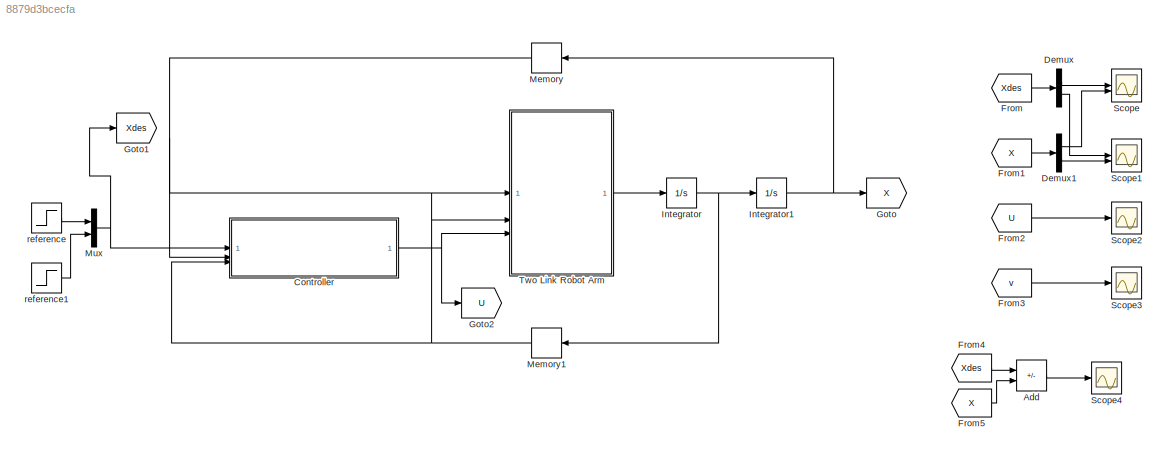
MODEL slx_8879d3bcecfa
KIND model
CONFIG AbsTol = auto
CONFIG EnableMultiTasking = off
CONFIG FixedStep = 0.01
CONFIG MaxStep = auto
CONFIG MinStep = auto
CONFIG RelTol = 1e-3
CONFIG SampleTimeConstraint = Unconstrained
CONFIG SolverName = FixedStepAuto
CONFIG StartTime = 0.0
CONFIG StopTime = 3
BLOCK [Sum] Add
  IconShape = rectangular
  Inputs = +-
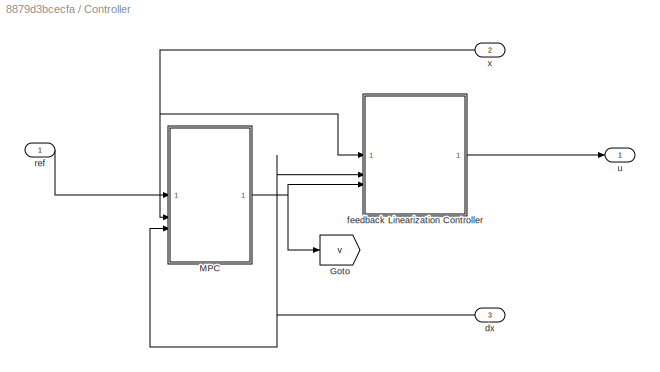
BLOCK [SubSystem] Controller
BLOCK [Goto] Controller/Goto
  GotoTag = v
  TagVisibility = global
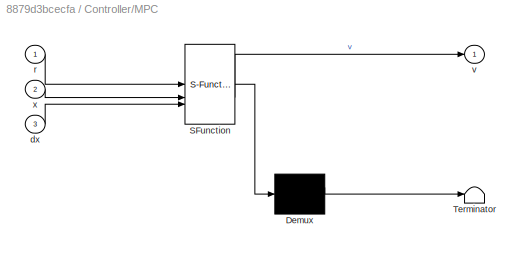
BLOCK [SubSystem] Controller/MPC
  ErrorFcn = Stateflow.Translate.translate
  PermitHierarchicalResolution = ExplicitOnly
  SFBlockType = MATLAB Function
  TreatAsAtomicUnit = on
BLOCK [Demux] Controller/MPC/ Demux 
  Outputs = 1
BLOCK [S-Function] Controller/MPC/ SFunction 
  EnableBusSupport = on
  FunctionName = sf_sfun
  PortCounts = [3 2]
  SFcnIsStateOwnerBlock = off
  SFunctionDeploymentMode = off
  Tag = Stateflow S-Function 3
BLOCK [Terminator] Controller/MPC/ Terminator 
BLOCK [Inport] Controller/MPC/dx
  Port = 3
BLOCK [Inport] Controller/MPC/r
BLOCK [Outport] Controller/MPC/v
BLOCK [Inport] Controller/MPC/x
  Port = 2
BLOCK [Inport] Controller/dx
  Port = 3
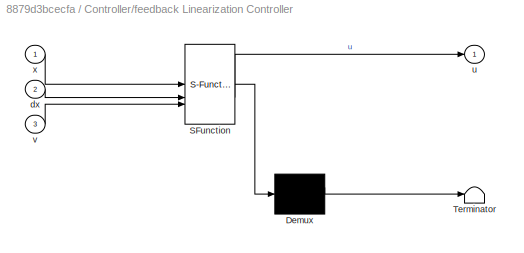
BLOCK [SubSystem] Controller/feedback Linearization Controller
  ErrorFcn = Stateflow.Translate.translate
  PermitHierarchicalResolution = ExplicitOnly
  SFBlockType = MATLAB Function
  TreatAsAtomicUnit = on
BLOCK [Demux] Controller/feedback Linearization Controller/ Demux 
  Outputs = 1
BLOCK [S-Function] Controller/feedback Linearization Controller/ SFunction 
  EnableBusSupport = on
  FunctionName = sf_sfun
  PortCounts = [3 2]
  SFcnIsStateOwnerBlock = off
  SFunctionDeploymentMode = off
  Tag = Stateflow S-Function 1
BLOCK [Terminator] Controller/feedback Linearization Controller/ Terminator 
BLOCK [Inport] Controller/feedback Linearization Controller/dx
  Port = 2
BLOCK [Outport] Controller/feedback Linearization Controller/u
BLOCK [Inport] Controller/feedback Linearization Controller/v
  Port = 3
BLOCK [Inport] Controller/feedback Linearization Controller/x
BLOCK [Inport] Controller/ref
BLOCK [Outport] Controller/u
BLOCK [Inport] Controller/x
  Port = 2
BLOCK [Demux] Demux
  Outputs = 2
BLOCK [Demux] Demux1
  Outputs = 2
BLOCK [From] From
  GotoTag = Xdes
  TagVisibility = global
BLOCK [From] From1
  GotoTag = X
  TagVisibility = global
BLOCK [From] From2
  GotoTag = U
  TagVisibility = global
BLOCK [From] From3
  GotoTag = v
  TagVisibility = global
BLOCK [From] From4
  GotoTag = Xdes
  TagVisibility = global
BLOCK [From] From5
  GotoTag = X
  TagVisibility = global
BLOCK [Goto] Goto
  GotoTag = X
  TagVisibility = global
BLOCK [Goto] Goto1
  GotoTag = Xdes
  TagVisibility = global
BLOCK [Goto] Goto2
  GotoTag = U
  TagVisibility = global
BLOCK [Integrator] Integrator
  InitialCondition = [0 0]
BLOCK [Integrator] Integrator1
  InitialCondition = [pi/2 -pi/2]
BLOCK [Memory] Memory
  InitialCondition = [pi/2 -pi/2]
  NameLocation = top
BLOCK [Memory] Memory1
  InitialCondition = [0 0]
  NameLocation = top
BLOCK [Mux] Mux
  DisplayOption = bar
  Inputs = 2
BLOCK [Scope] Scope
  Floating = off
  NumInputPorts = 2
  ScopeSpecificationString = Simulink.scopes.TimeScopeBlockCfg('CurrentConfiguration', extmgr.ConfigurationSet(extmgr.Configuration('Core','General UI',true,'FigureColor',[1 1 1]),extmgr.Configuration('Core','Source UI',true),extmgr.Configuration('Sources','WiredSimulink',true),extmgr.Configuration('Visuals','Time Domain',true,'SerializedDisplays',{struct('MinYLimReal','0.64879','MaxYLimReal','1.67324','YLabelReal','\theta_1 ...<+1696ch>
BLOCK [Scope] Scope1
  Floating = off
  NumInputPorts = 2
  ScopeSpecificationString = Simulink.scopes.TimeScopeBlockCfg('CurrentConfiguration', extmgr.ConfigurationSet(extmgr.Configuration('Core','General UI',true,'FigureColor',[1 1 1]),extmgr.Configuration('Core','Source UI',true),extmgr.Configuration('Sources','WiredSimulink',true,'DataLoggingVariableName','ScopeData1'),extmgr.Configuration('Visuals','Time Domain',true,'SerializedDisplays',{struct('MinYLimReal','-1.67324','MaxYLi...<+1676ch>
BLOCK [Scope] Scope2
  Floating = off
  NumInputPorts = 1
  ScopeSpecificationString = Simulink.scopes.TimeScopeBlockCfg('CurrentConfiguration', extmgr.ConfigurationSet(extmgr.Configuration('Core','General UI',true,'FigureColor',[1 1 1]),extmgr.Configuration('Core','Source UI',true),extmgr.Configuration('Sources','WiredSimulink',true,'DataLoggingVariableName','ScopeData2'),extmgr.Configuration('Visuals','Time Domain',true,'SerializedDisplays',{struct('MinYLimReal','-26.48226','MaxYL...<+1739ch>
BLOCK [Scope] Scope3
  Floating = off
  NumInputPorts = 1
  ScopeSpecificationString = Simulink.scopes.TimeScopeBlockCfg('CurrentConfiguration', extmgr.ConfigurationSet(extmgr.Configuration('Core','General UI',true,'FigureColor',[1 1 1]),extmgr.Configuration('Core','Source UI',true),extmgr.Configuration('Sources','WiredSimulink',true,'DataLoggingVariableName','ScopeData1'),extmgr.Configuration('Visuals','Time Domain',true,'SerializedDisplays',{struct('MinYLimReal','-15.69815','MaxYL...<+1743ch>
BLOCK [Scope] Scope4
  Floating = off
  NumInputPorts = 1
  ScopeSpecificationString = Simulink.scopes.TimeScopeBlockCfg('CurrentConfiguration', extmgr.ConfigurationSet(extmgr.Configuration('Core','General UI',true,'FigureColor',[1 1 1]),extmgr.Configuration('Core','Source UI',true),extmgr.Configuration('Sources','WiredSimulink',true,'DataLoggingVariableName','ScopeData1'),extmgr.Configuration('Visuals','Time Domain',true,'SerializedDisplays',{struct('MinYLimReal','-0.98175','MaxYLi...<+1714ch>
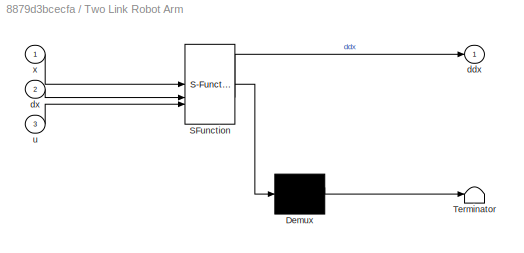
BLOCK [SubSystem] Two Link Robot Arm
  ErrorFcn = Stateflow.Translate.translate
  PermitHierarchicalResolution = ExplicitOnly
  SFBlockType = MATLAB Function
  TreatAsAtomicUnit = on
BLOCK [Demux] Two Link Robot Arm/ Demux 
  Outputs = 1
BLOCK [S-Function] Two Link Robot Arm/ SFunction 
  EnableBusSupport = on
  FunctionName = sf_sfun
  PortCounts = [3 2]
  SFcnIsStateOwnerBlock = off
  SFunctionDeploymentMode = off
  Tag = Stateflow S-Function 2
BLOCK [Terminator] Two Link Robot Arm/ Terminator 
BLOCK [Outport] Two Link Robot Arm/ddx
BLOCK [Inport] Two Link Robot Arm/dx
  Port = 2
BLOCK [Inport] Two Link Robot Arm/u
  Port = 3
BLOCK [Inport] Two Link Robot Arm/x
BLOCK [Step] reference
  After = pi/4
  Before = pi/2
  SampleTime = 0
  Time = 0
BLOCK [Step] reference1
  After = -pi/4
  Before = -pi/2
  SampleTime = 0
  Time = 0
LINE Add:1 -> Scope4:1
NET Controller/MPC:1 -> Controller/Goto:1, Controller/feedback Linearization Controller:3
NET Controller/dx:1 -> Controller/MPC:3, Controller/feedback Linearization Controller:2
LINE Controller/feedback Linearization Controller:1 -> Controller/u:1
LINE Controller/ref:1 -> Controller/MPC:1
NET Controller/x:1 -> Controller/MPC:2, Controller/feedback Linearization Controller:1
NET Controller:1 -> Goto2:1, Two Link Robot Arm:3
LINE Demux1:1 -> Scope:2
LINE Demux1:2 -> Scope1:2
LINE Demux:1 -> Scope:1
LINE Demux:2 -> Scope1:1
LINE From1:1 -> Demux1:1
LINE From2:1 -> Scope2:1
LINE From3:1 -> Scope3:1
LINE From4:1 -> Add:1
LINE From5:1 -> Add:2
LINE From:1 -> Demux:1
NET Integrator1:1 -> Goto:1, Memory:1
NET Integrator:1 -> Integrator1:1, Memory1:1
NET Memory1:1 -> Controller:3, Two Link Robot Arm:2
NET Memory:1 -> Controller:2, Two Link Robot Arm:1
NET Mux:1 -> Controller:1, Goto1:1
LINE Two Link Robot Arm:1 -> Integrator:1
LINE reference1:1 -> Mux:2
LINE reference:1 -> Mux:1
note: NET lines group one-source signal fan-out (src -> all destinations, sorted); 1:1 wires keep LINE
CHART Controller/feedback Linearization Controller states=1 transitions=1
  STATE_LABEL 'eML_blk_kernel()'
  STATE_LABEL 'SCRIPT:\nfunction u = fcn(x,dx,v)\n\nM1 = 1;\nM2 = 1;\nL1 = 1;\nL2 = 1;\ng = 9.81;\nG = [-(M1+M2)*g*L1-M2*g*L2*sin(x(1)+x(2));...\n    -M2*g*L2*sin(x(1)+x(2));];\nC = [M1*L1*L2*(2*dx(1)*dx(2) + dx(1)^2)*sin(x(2));...\n    -M2*L1*L2*dx(1)*dx(2)*sin(x(2));];\nM = [-(M1+M2)*L1^2 + M2*L2^2 + 2*M2*L1*L2*cos(x(2)), M2*L2^2 + M2*L1*L2*cos(x(2));...\n     M2*L2^2 + M2*L1*L2*cos(x(2)),  M2*L2^2;];\n\n\n\nu = M*v + C + G;\n'
CHART Two Link Robot Arm states=1 transitions=1
  STATE_LABEL 'eML_blk_kernel()'
  STATE_LABEL 'SCRIPT:\nfunction ddx = fcn(x,dx,u)\n\nM1 = 1;\nM2 = 1;\nL1 = 1;\nL2 = 1;\ng = 9.81;\nG = [-(M1+M2)*g*L1-M2*g*L2*sin(x(1)+x(2));...\n    -M2*g*L2*sin(x(1)+x(2));];\nC = [M1*L1*L2*(2*dx(1)*dx(2) + dx(1)^2)*sin(x(2));...\n    -M2*L1*L2*dx(1)*dx(2)*sin(x(2));];\nM = [-(M1+M2)*L1^2 + M2*L2^2 + 2*M2*L1*L2*cos(x(2)), M2*L2^2 + M2*L1*L2*cos(x(2));...\n     M2*L2^2 + M2*L1*L2*cos(x(2)),  M2*L2^2;];\nddx = inv(M)*(-C-G+...<+4ch>'
CHART Controller/MPC states=1 transitions=1
  STATE_LABEL 'eML_blk_kernel()'
  STATE_LABEL 'SCRIPT:\nfunction v  = fcn(r,x,dx)\n\nk1 = 15.99;\nk2 = 5.65;\nk3 = k1;\n\nv = [k3*r(1) - k1*x(1) - k2*dx(1);...\n     (k3*r(2) - k1*x(2) - k2*dx(2));];\n'
CHART  states=0 transitions=0
CHART  states=0 transitions=0
CHART  states=0 transitions=0
